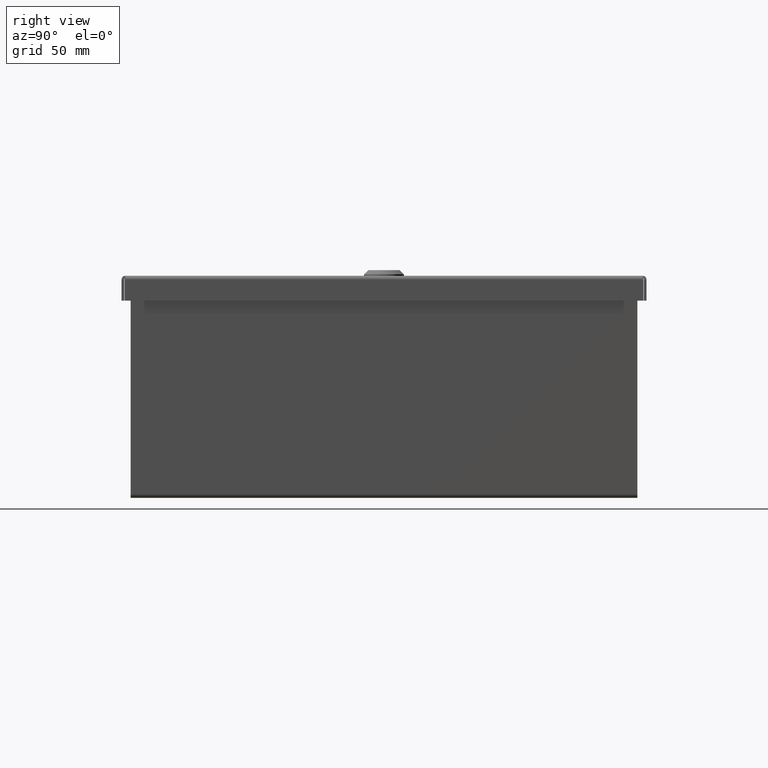
[diagram: clean part render]
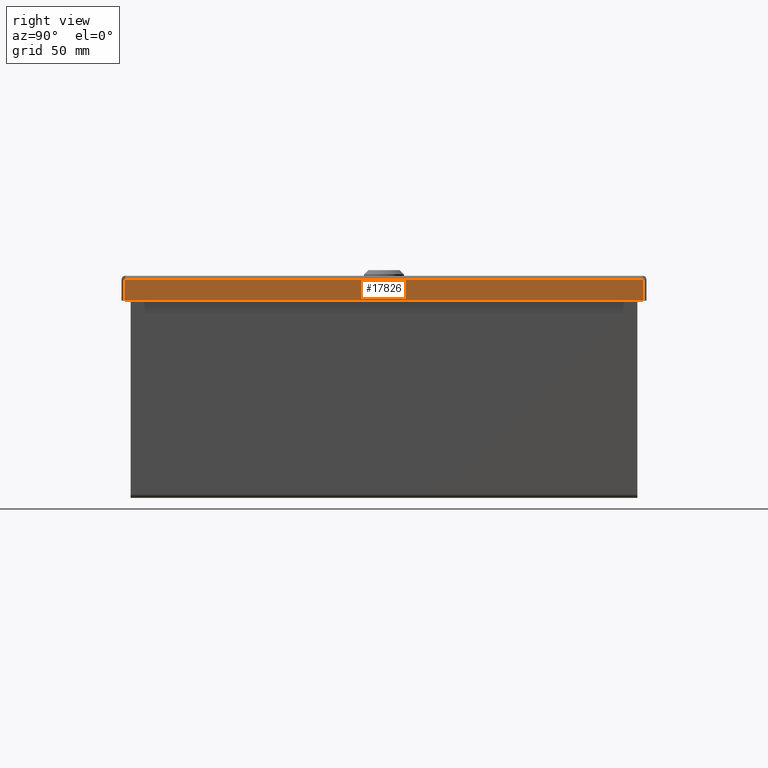
[diagram: same view with one face highlighted and labeled with its STEP entity id]
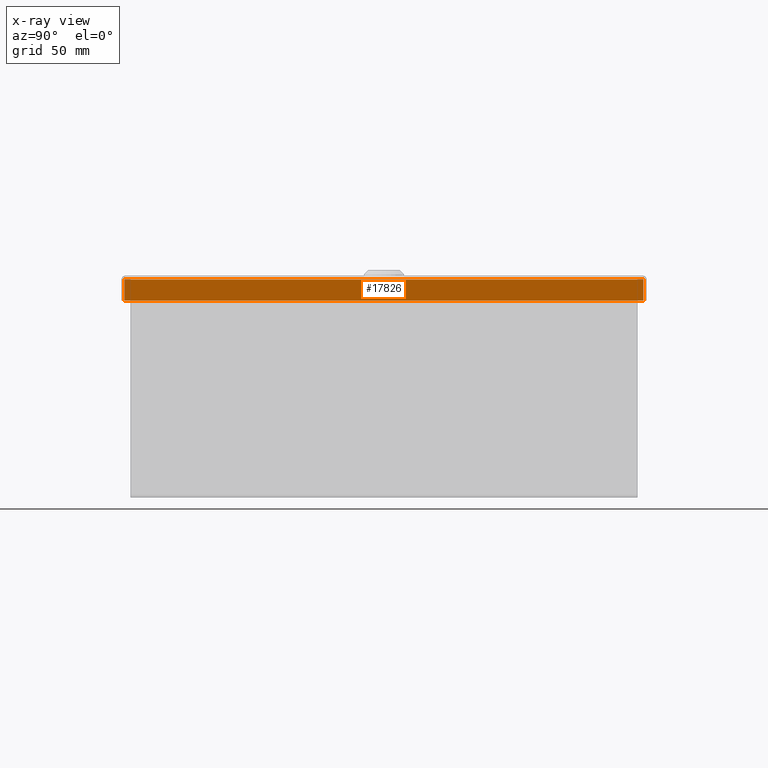
[diagram: x-ray of the same camera — body ghosted, the highlighted face saturated]
A machine part, right view. The second image highlights one B-rep face of the part: STEP entity #17826.
The next image is the same camera in x-ray: the body ghosted, the highlighted face saturated — about 0% of this face is hidden behind the body in this view.
In plain terms, the highlighted planar face has unit normal (1, -0, 0).
Its self-contained STEP definition (entity closure, byte-faithful):
#17787=CARTESIAN_POINT('',(6.249999999999998,-2.413527E-016,-0.272679359774768));
#17788=DIRECTION('',(1.0,0.0,0.0));
#17789=DIRECTION('',(0.0,0.0,-1.0));
#17790=AXIS2_PLACEMENT_3D('',#17787,#17788,#17789);
#17791=PLANE('',#17790);
#17792=CARTESIAN_POINT('',(6.25,7.164951456543959,-0.031250000000002));
#17793=VERTEX_POINT('',#17792);
#17794=CARTESIAN_POINT('',(6.250000000000001,-7.164951456543961,-0.031250000000003));
#17795=VERTEX_POINT('',#17794);
#17796=CARTESIAN_POINT('',(6.25,7.164951456543959,-0.03125));
#17797=DIRECTION('',(0.0,-1.0,0.0));
#17798=VECTOR('',#17797,14.329902913087921);
#17799=LINE('',#17796,#17798);
#17800=EDGE_CURVE('',#17793,#17795,#17799,.T.);
#17801=ORIENTED_EDGE('',*,*,#17800,.T.);
#17802=CARTESIAN_POINT('',(6.249999999999996,-7.164951456543961,-0.613500000000003));
#17803=VERTEX_POINT('',#17802);
#17804=CARTESIAN_POINT('',(6.250000000000001,-7.164951456543961,-0.031250000000003));
#17805=DIRECTION('',(0.0,0.0,-1.0));
#17806=VECTOR('',#17805,0.58225);
#17807=LINE('',#17804,#17806);
#17808=EDGE_CURVE('',#17795,#17803,#17807,.T.);
#17809=ORIENTED_EDGE('',*,*,#17808,.T.);
#17810=CARTESIAN_POINT('',(6.249999999999995,7.164951456543961,-0.6135));
#17811=VERTEX_POINT('',#17810);
#17812=CARTESIAN_POINT('',(6.249999999999996,-7.164951456543961,-0.613500000000003));
#17813=DIRECTION('',(0.0,1.0,0.0));
#17814=VECTOR('',#17813,14.329902913087922);
#17815=LINE('',#17812,#17814);
#17816=EDGE_CURVE('',#17803,#17811,#17815,.T.);
#17817=ORIENTED_EDGE('',*,*,#17816,.T.);
#17818=CARTESIAN_POINT('',(6.25,7.164951456543961,-0.031250000000002));
#17819=DIRECTION('',(0.0,0.0,-1.0));
#17820=VECTOR('',#17819,0.582249999999999);
#17821=LINE('',#17818,#17820);
#17822=EDGE_CURVE('',#17793,#17811,#17821,.T.);
#17823=ORIENTED_EDGE('',*,*,#17822,.F.);
#17824=EDGE_LOOP('',(#17801,#17809,#17817,#17823));
#17825=FACE_OUTER_BOUND('',#17824,.T.);
#17826=ADVANCED_FACE('',(#17825),#17791,.T.);